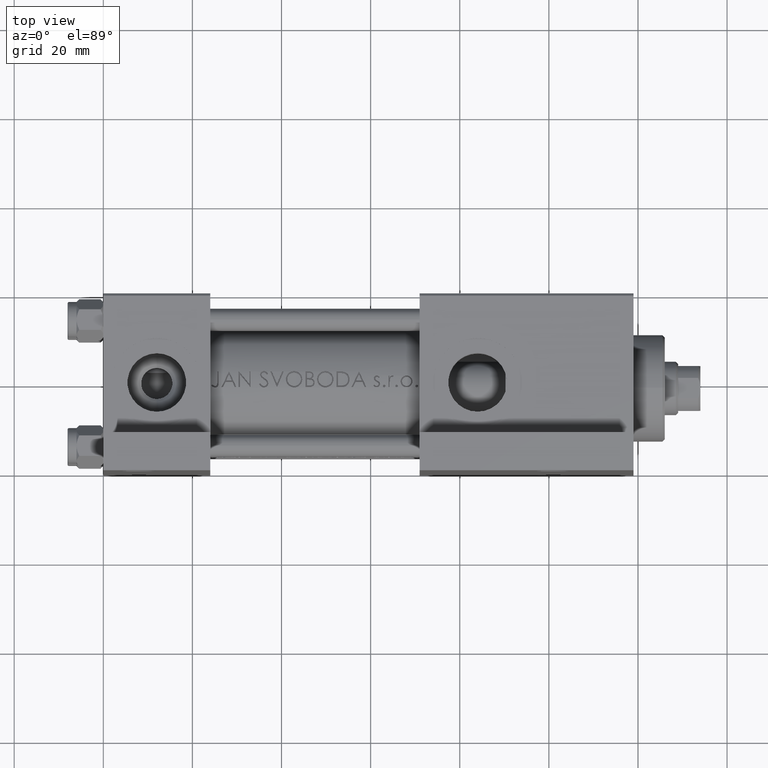
[diagram: clean part render]
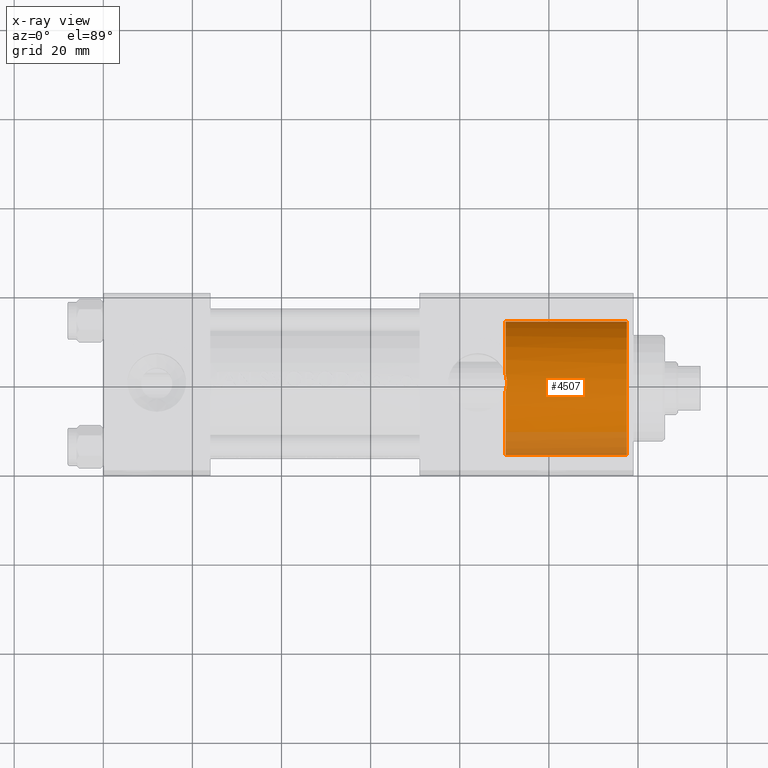
[diagram: x-ray — body ghosted, one internal face saturated and labeled with its STEP entity id]
A machine part, top view, then the same camera in x-ray: the body is ghosted and one INTERNAL B-rep face — a face not visible from any outside direction — is saturated and labeled: STEP entity #4507.
In plain terms, the highlighted cylindrical surface (partial cylindrical patch) has radius 15 mm, axis along (1, 0, 0).
Its self-contained STEP definition (entity closure, byte-faithful):
#24 = CIRCLE ( 'NONE', #26916, 15.00000000000000000 ) ;
#256 = DIRECTION ( 'NONE',  ( 0.000000000000000000, 0.000000000000000000, -1.000000000000000000 ) ) ;
#1611 = VECTOR ( 'NONE', #35919, 1000.000000000000000 ) ;
#2042 = EDGE_CURVE ( 'NONE', #21818, #17256, #16308, .T. ) ;
#4507 = ADVANCED_FACE ( 'NONE', ( #24944 ), #13428, .F. ) ;
#5375 = CARTESIAN_POINT ( 'NONE',  ( 90.30000000000001137, 0.000000000000000000, -1.000000000000000888 ) ) ;
#5600 = EDGE_LOOP ( 'NONE', ( #38575, #36930, #36058, #21051, #7619, #23718 ) ) ;
#6787 = VERTEX_POINT ( 'NONE', #36752 ) ;
#7619 = ORIENTED_EDGE ( 'NONE', *, *, #15545, .F. ) ;
#9716 = DIRECTION ( 'NONE',  ( 1.000000000000000000, 0.000000000000000000, 0.000000000000000000 ) ) ;
#10878 = VERTEX_POINT ( 'NONE', #38445 ) ;
#12392 = LINE ( 'NONE', #16241, #35016 ) ;
#12847 = DIRECTION ( 'NONE',  ( 0.000000000000000000, 0.000000000000000000, -1.000000000000000000 ) ) ;
#13396 = CARTESIAN_POINT ( 'NONE',  ( 90.58045595236575309, -15.00975377117312703, -0.6424106326927621069 ) ) ;
#13428 = CYLINDRICAL_SURFACE ( 'NONE', #33698, 15.00000000000000000 ) ;
#13840 = CARTESIAN_POINT ( 'NONE',  ( 90.30000000000001137, 0.000000000000000000, -16.00000000000000000 ) ) ;
#14091 = AXIS2_PLACEMENT_3D ( 'NONE', #5375, #9716, #12847 ) ;
#14179 = DIRECTION ( 'NONE',  ( 1.000000000000000000, 0.000000000000000000, 0.000000000000000000 ) ) ;
#15545 = EDGE_CURVE ( 'NONE', #21818, #17756, #33223, .T. ) ;
#16241 = CARTESIAN_POINT ( 'NONE',  ( 90.30000000000001137, 1.836970198721029589E-15, 13.99999999999999822 ) ) ;
#16308 = B_SPLINE_CURVE_WITH_KNOTS ( 'NONE', 3,
 ( #24673, #39314, #13396, #46275, #35010, #17470, #35713, #35943 ),
 .UNSPECIFIED., .F., .F.,
 ( 4, 2, 2, 4 ),
 ( 0.000000000000000000, 0.001924080657249354004, 0.002886120985874031115, 0.003848161314498708008 ),
 .UNSPECIFIED. ) ;
#16762 = CARTESIAN_POINT ( 'NONE',  ( 90.30000000000001137, -14.97303258496922318, -1.899052395275081739 ) ) ;
#17256 = VERTEX_POINT ( 'NONE', #19865 ) ;
#17470 = CARTESIAN_POINT ( 'NONE',  ( 90.46176567440289773, -14.82879915147431404, 1.282138374416005755 ) ) ;
#17594 = CARTESIAN_POINT ( 'NONE',  ( 90.30000000000001137, 0.000000000000000000, -16.00000000000000000 ) ) ;
#17756 = VERTEX_POINT ( 'NONE', #17594 ) ;
#19865 = CARTESIAN_POINT ( 'NONE',  ( 90.30000000000001137, -14.71718367111893500, 1.899052395275079297 ) ) ;
#20989 = CIRCLE ( 'NONE', #14091, 15.00000000000000000 ) ;
#21051 = ORIENTED_EDGE ( 'NONE', *, *, #37678, .F. ) ;
#21818 = VERTEX_POINT ( 'NONE', #16762 ) ;
#22964 = EDGE_CURVE ( 'NONE', #10878, #6787, #12392, .T. ) ;
#23718 = ORIENTED_EDGE ( 'NONE', *, *, #2042, .T. ) ;
#24673 = CARTESIAN_POINT ( 'NONE',  ( 90.30000000000001137, -14.97303258496922318, -1.899052395275081739 ) ) ;
#24944 = FACE_OUTER_BOUND ( 'NONE', #5600, .T. ) ;
#25039 = DIRECTION ( 'NONE',  ( 1.000000000000000000, 0.000000000000000000, 0.000000000000000000 ) ) ;
#25697 = CARTESIAN_POINT ( 'NONE',  ( 117.5000000000000000, 0.000000000000000000, -16.00000000000000000 ) ) ;
#26916 = AXIS2_PLACEMENT_3D ( 'NONE', #47061, #14179, #28833 ) ;
#28072 = CARTESIAN_POINT ( 'NONE',  ( 90.30000000000001137, 0.000000000000000000, -1.000000000000000888 ) ) ;
#28791 = DIRECTION ( 'NONE',  ( 0.000000000000000000, 0.000000000000000000, -1.000000000000000000 ) ) ;
#28833 = DIRECTION ( 'NONE',  ( 0.000000000000000000, 0.000000000000000000, 1.000000000000000000 ) ) ;
#33199 = CARTESIAN_POINT ( 'NONE',  ( 90.30000000000001137, 0.000000000000000000, -1.000000000000000888 ) ) ;
#33223 = CIRCLE ( 'NONE', #41678, 15.00000000000000000 ) ;
#33543 = DIRECTION ( 'NONE',  ( 1.000000000000000000, -0.000000000000000000, -0.000000000000000000 ) ) ;
#33698 = AXIS2_PLACEMENT_3D ( 'NONE', #28072, #42710, #28791 ) ;
#33713 = EDGE_CURVE ( 'NONE', #6787, #39702, #24, .T. ) ;
#35010 = CARTESIAN_POINT ( 'NONE',  ( 90.55552880845885966, -14.91230421798962702, 0.6506431306845646967 ) ) ;
#35016 = VECTOR ( 'NONE', #33543, 1000.000000000000000 ) ;
#35713 = CARTESIAN_POINT ( 'NONE',  ( 90.39225441418395235, -14.77747045446267471, 1.593003541223032116 ) ) ;
#35919 = DIRECTION ( 'NONE',  ( 1.000000000000000000, -0.000000000000000000, -0.000000000000000000 ) ) ;
#35943 = CARTESIAN_POINT ( 'NONE',  ( 90.30000000000001137, -14.71718367111893500, 1.899052395275079297 ) ) ;
#36058 = ORIENTED_EDGE ( 'NONE', *, *, #33713, .T. ) ;
#36752 = CARTESIAN_POINT ( 'NONE',  ( 117.5000000000000000, 1.836970198721029589E-15, 13.99999999999999822 ) ) ;
#36930 = ORIENTED_EDGE ( 'NONE', *, *, #22964, .T. ) ;
#37678 = EDGE_CURVE ( 'NONE', #17756, #39702, #46484, .T. ) ;
#38445 = CARTESIAN_POINT ( 'NONE',  ( 90.30000000000001137, 1.836970198721029589E-15, 13.99999999999999822 ) ) ;
#38575 = ORIENTED_EDGE ( 'NONE', *, *, #43835, .F. ) ;
#39314 = CARTESIAN_POINT ( 'NONE',  ( 90.48749653940983251, -15.01038099270787640, -1.277043123060702001 ) ) ;
#39702 = VERTEX_POINT ( 'NONE', #25697 ) ;
#41678 = AXIS2_PLACEMENT_3D ( 'NONE', #33199, #25039, #256 ) ;
#42710 = DIRECTION ( 'NONE',  ( 1.000000000000000000, -0.000000000000000000, -0.000000000000000000 ) ) ;
#43835 = EDGE_CURVE ( 'NONE', #10878, #17256, #20989, .T. ) ;
#46275 = CARTESIAN_POINT ( 'NONE',  ( 90.57976955573070654, -14.94459997606219659, 0.3281852891054674037 ) ) ;
#46484 = LINE ( 'NONE', #13840, #1611 ) ;
#47061 = CARTESIAN_POINT ( 'NONE',  ( 117.5000000000000000, 0.000000000000000000, -1.000000000000000888 ) ) ;